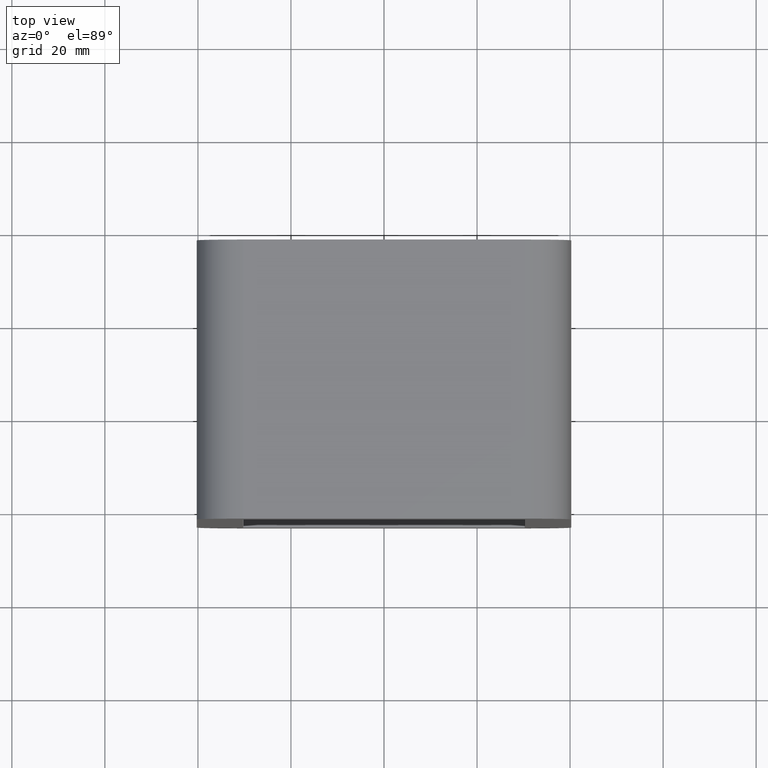
[diagram: clean part render]
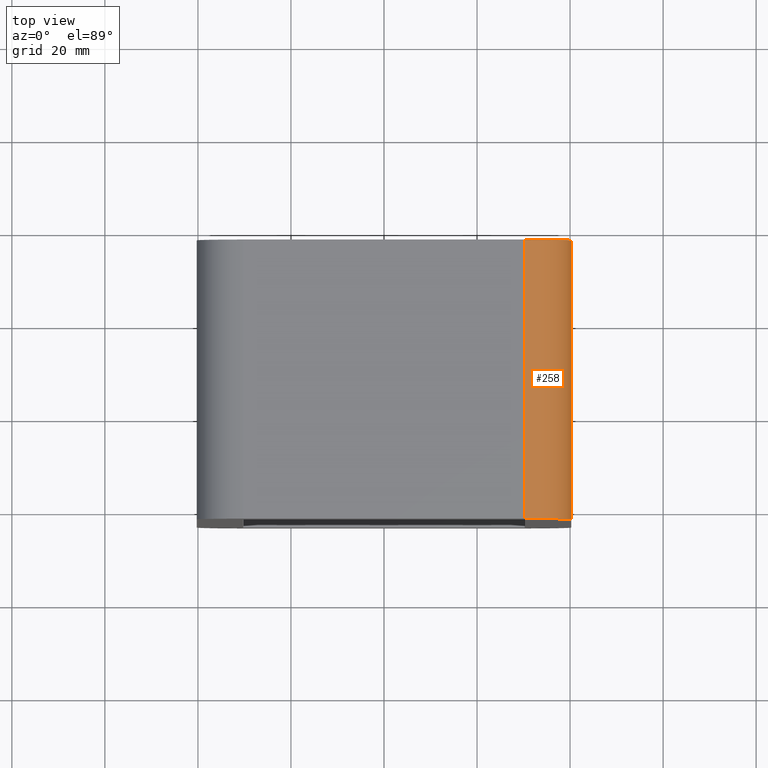
[diagram: same view with one face highlighted and labeled with its STEP entity id]
A machine part, top view. The second image highlights one B-rep face of the part: STEP entity #258.
In plain terms, the highlighted cylindrical surface (partial cylindrical patch) has radius 10 mm, axis along (0, -1, 0).
Its self-contained STEP definition (entity closure, byte-faithful):
#116=CARTESIAN_POINT('',(40.25,-3.0,50.500000000000007));
#117=VERTEX_POINT('',#116);
#124=CARTESIAN_POINT('',(30.250000000000004,-3.0,60.500000000000007));
#125=VERTEX_POINT('',#124);
#126=CARTESIAN_POINT('',(30.250000000000004,-3.0,50.500000000000007));
#127=DIRECTION('',(0.0,1.0,0.0));
#128=DIRECTION('',(0.707106781186547,0.0,0.707106781186547));
#129=AXIS2_PLACEMENT_3D('',#126,#127,#128);
#130=CIRCLE('',#129,9.999999999999998);
#131=EDGE_CURVE('',#125,#117,#130,.T.);
#216=CARTESIAN_POINT('',(40.25,57.0,50.500000000000007));
#217=VERTEX_POINT('',#216);
#224=CARTESIAN_POINT('',(40.25,-3.0,50.500000000000007));
#225=DIRECTION('',(0.0,1.0,0.0));
#226=VECTOR('',#225,60.0);
#227=LINE('',#224,#226);
#228=EDGE_CURVE('',#117,#217,#227,.T.);
#234=CARTESIAN_POINT('',(30.250000000000004,0.0,50.500000000000007));
#235=DIRECTION('',(0.0,-1.0,0.0));
#236=DIRECTION('',(0.707106781186547,0.0,0.707106781186547));
#237=AXIS2_PLACEMENT_3D('',#234,#235,#236);
#238=CYLINDRICAL_SURFACE('',#237,10.0);
#239=ORIENTED_EDGE('',*,*,#131,.T.);
#240=ORIENTED_EDGE('',*,*,#228,.T.);
#241=CARTESIAN_POINT('',(30.250000000000004,57.0,60.500000000000007));
#242=VERTEX_POINT('',#241);
#243=CARTESIAN_POINT('',(30.250000000000004,57.0,50.500000000000007));
#244=DIRECTION('',(0.0,-1.0,0.0));
#245=DIRECTION('',(0.707106781186547,0.0,0.707106781186547));
#246=AXIS2_PLACEMENT_3D('',#243,#244,#245);
#247=CIRCLE('',#246,9.999999999999998);
#248=EDGE_CURVE('',#217,#242,#247,.T.);
#249=ORIENTED_EDGE('',*,*,#248,.T.);
#250=CARTESIAN_POINT('',(30.250000000000004,57.0,60.500000000000007));
#251=DIRECTION('',(0.0,-1.0,0.0));
#252=VECTOR('',#251,60.0);
#253=LINE('',#250,#252);
#254=EDGE_CURVE('',#242,#125,#253,.T.);
#255=ORIENTED_EDGE('',*,*,#254,.T.);
#256=EDGE_LOOP('',(#239,#240,#249,#255));
#257=FACE_OUTER_BOUND('',#256,.T.);
#258=ADVANCED_FACE('',(#257),#238,.T.);